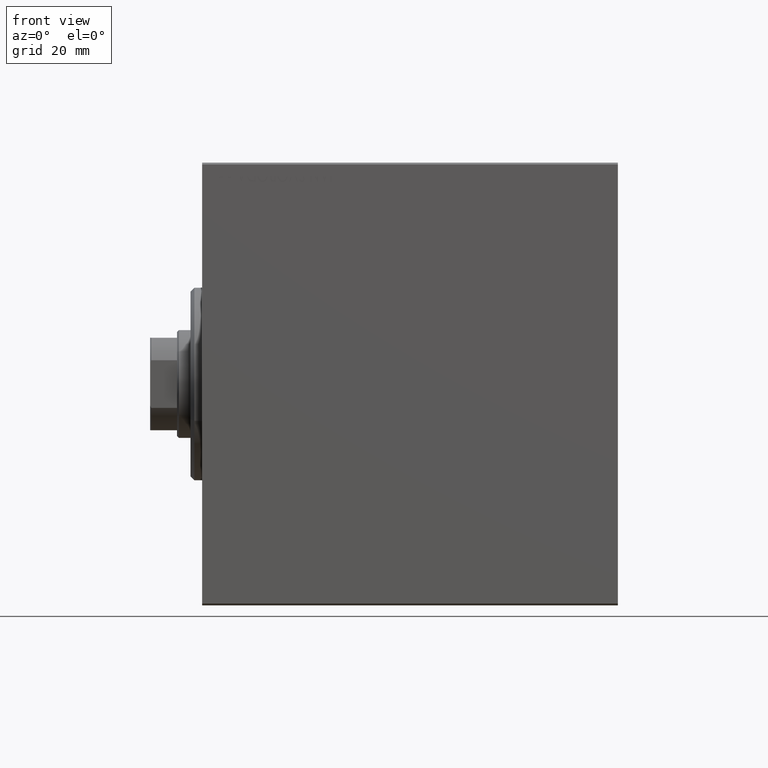
[diagram: clean part render]
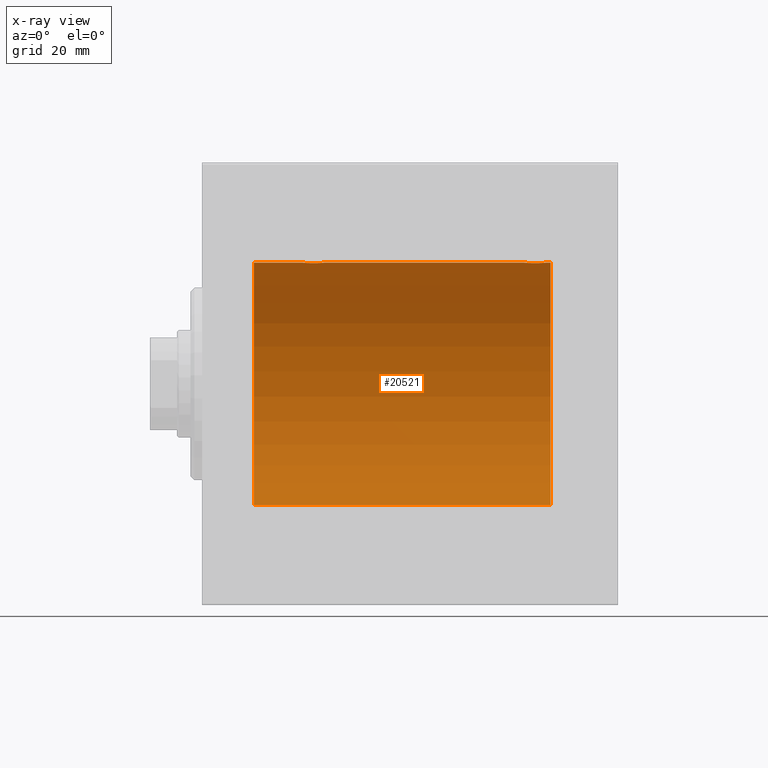
[diagram: x-ray — body ghosted, one internal face saturated and labeled with its STEP entity id]
A machine part, front view, then the same camera in x-ray: the body is ghosted and one INTERNAL B-rep face — a face not visible from any outside direction — is saturated and labeled: STEP entity #20521.
In plain terms, the highlighted cylindrical surface (partial cylindrical patch) has radius 31.5 mm, axis along (-1, -0, -0).
Its self-contained STEP definition (entity closure, byte-faithful):
#187 = CARTESIAN_POINT ( 'NONE',  ( 85.72154160523335520, 2.903876953428275343, 31.36588880666517909 ) ) ;
#618 = VECTOR ( 'NONE', #40549, 1000.000000000000000 ) ;
#1093 = CARTESIAN_POINT ( 'NONE',  ( 31.84649213527308120, 0.9675486622706125361, 31.48566161620712478 ) ) ;
#1532 = CARTESIAN_POINT ( 'NONE',  ( 29.39162658774828785, 2.980875975682584222, 31.35866508162785848 ) ) ;
#1569 = CARTESIAN_POINT ( 'NONE',  ( 90.50000000000000000, 0.000000000000000000, 31.50000000000000000 ) ) ;
#1763 = DIRECTION ( 'NONE',  ( -1.000000000000000000, 0.000000000000000000, 0.000000000000000000 ) ) ;
#3317 = CARTESIAN_POINT ( 'NONE',  ( 87.27897008593143369, 2.903824817694236504, 31.36589387714387200 ) ) ;
#3534 = CARTESIAN_POINT ( 'NONE',  ( 86.30529250725176382, 3.000070712257539629, 31.35681067529873189 ) ) ;
#3555 = ORIENTED_EDGE ( 'NONE', *, *, #13470, .T. ) ;
#3979 = CARTESIAN_POINT ( 'NONE',  ( 88.00363134844577928, 2.603460270751700278, 31.39242096616744959 ) ) ;
#4207 = CARTESIAN_POINT ( 'NONE',  ( 31.25924903376736097, 1.983444873066708247, 31.43779820687992554 ) ) ;
#4427 = CARTESIAN_POINT ( 'NONE',  ( 26.61488042651788177, 1.830131931565276426, 31.44721086712685931 ) ) ;
#5407 = CARTESIAN_POINT ( 'NONE',  ( 13.49999999999999822, 3.857637417314162689E-15, -31.50000000000000000 ) ) ;
#5466 = ORIENTED_EDGE ( 'NONE', *, *, #7889, .T. ) ;
#5562 = DIRECTION ( 'NONE',  ( -1.000000000000000000, -0.000000000000000000, -0.000000000000000000 ) ) ;
#5784 = EDGE_CURVE ( 'NONE', #30088, #26821, #40113, .T. ) ;
#6136 = CARTESIAN_POINT ( 'NONE',  ( 13.49999999999999822, 0.000000000000000000, 31.50000000000000000 ) ) ;
#6471 = CARTESIAN_POINT ( 'NONE',  ( 89.50000000000000000, -2.415502498297804861E-16, 31.50000000000000000 ) ) ;
#6789 = VECTOR ( 'NONE', #33684, 1000.000000000000000 ) ;
#7107 = CARTESIAN_POINT ( 'NONE',  ( 89.50000000000000000, -2.415502498297804861E-16, 31.50000000000000000 ) ) ;
#7889 = EDGE_CURVE ( 'NONE', #10371, #34464, #24802, .T. ) ;
#7967 = ORIENTED_EDGE ( 'NONE', *, *, #12276, .T. ) ;
#7999 = CARTESIAN_POINT ( 'NONE',  ( 28.60640401948893086, 2.980533683278877355, 31.35869737338551388 ) ) ;
#8224 = CARTESIAN_POINT ( 'NONE',  ( 29.77897008593146211, 2.903824817694226290, 31.36589387714387200 ) ) ;
#8447 = CARTESIAN_POINT ( 'NONE',  ( 31.90423806629734926, 0.7769457993854306244, 31.49100119919085472 ) ) ;
#8890 = CARTESIAN_POINT ( 'NONE',  ( 13.49999999999999822, 0.000000000000000000, 0.000000000000000000 ) ) ;
#9164 = VECTOR ( 'NONE', #35668, 1000.000000000000000 ) ;
#9458 = ORIENTED_EDGE ( 'NONE', *, *, #42664, .T. ) ;
#10008 = CARTESIAN_POINT ( 'NONE',  ( 86.69688046033346041, 2.999928894260102563, 31.35682424344752306 ) ) ;
#10371 = VERTEX_POINT ( 'NONE', #34181 ) ;
#10446 = CARTESIAN_POINT ( 'NONE',  ( 88.88591626639478704, 1.829162098167821604, 31.44727042639136627 ) ) ;
#10667 = CARTESIAN_POINT ( 'NONE',  ( 83.59639262129910264, 0.7794402936641361412, 31.49094275383853514 ) ) ;
#11638 = CARTESIAN_POINT ( 'NONE',  ( 90.50000000000000000, 0.000000000000000000, 31.50000000000000000 ) ) ;
#11767 = VERTEX_POINT ( 'NONE', #6136 ) ;
#12276 = EDGE_CURVE ( 'NONE', #11767, #35058, #42314, .T. ) ;
#13194 = LINE ( 'NONE', #36816, #6789 ) ;
#13470 = EDGE_CURVE ( 'NONE', #30088, #38954, #17555, .T. ) ;
#13634 = CARTESIAN_POINT ( 'NONE',  ( 90.50000000000000000, 0.000000000000000000, 0.000000000000000000 ) ) ;
#13785 = CARTESIAN_POINT ( 'NONE',  ( 84.67061414532871311, 2.385694485610543314, 31.40971707706042437 ) ) ;
#13812 = ORIENTED_EDGE ( 'NONE', *, *, #5784, .F. ) ;
#14206 = CARTESIAN_POINT ( 'NONE',  ( 90.50000000000000000, 0.000000000000000000, 31.50000000000000000 ) ) ;
#14560 = CARTESIAN_POINT ( 'NONE',  ( 26.00000000000000355, -2.117263226567934635E-23, 31.50000000000000000 ) ) ;
#14688 = CARTESIAN_POINT ( 'NONE',  ( 26.00000000000000355, -2.117263226567934635E-23, 31.50000000000000000 ) ) ;
#14911 = CARTESIAN_POINT ( 'NONE',  ( 31.38591626639475862, 1.829162098167815387, 31.44727042639135917 ) ) ;
#15429 = CARTESIAN_POINT ( 'NONE',  ( 32.00000000000000000, -3.906065418435112189E-16, 31.50000000000000000 ) ) ;
#16693 = CARTESIAN_POINT ( 'NONE',  ( 83.51962964533699108, 0.3947854228308227409, 31.49811339059598581 ) ) ;
#17131 = CARTESIAN_POINT ( 'NONE',  ( 86.10640401948890599, 2.980533683278887569, 31.35869737338551388 ) ) ;
#17555 = LINE ( 'NONE', #14206, #38074 ) ;
#17580 = CARTESIAN_POINT ( 'NONE',  ( 85.53447219557938297, 2.847177118681589292, 31.37115363072576102 ) ) ;
#17650 = DIRECTION ( 'NONE',  ( 0.000000000000000000, 0.000000000000000000, 1.000000000000000000 ) ) ;
#17810 = CARTESIAN_POINT ( 'NONE',  ( 29.19688046033348883, 2.999928894260092349, 31.35682424344752306 ) ) ;
#18700 = CARTESIAN_POINT ( 'NONE',  ( 26.00000000000001066, 0.1958503357044829030, 31.50000000000000711 ) ) ;
#20040 = CARTESIAN_POINT ( 'NONE',  ( 83.65313998394373129, 0.9664718879465890033, 31.48569500832682522 ) ) ;
#20190 = AXIS2_PLACEMENT_3D ( 'NONE', #13634, #24121, #17650 ) ;
#20486 = CARTESIAN_POINT ( 'NONE',  ( 88.33158836027361360, 2.384155341399023520, 31.40983767558390483 ) ) ;
#20496 = LINE ( 'NONE', #37867, #618 ) ;
#20521 = ADVANCED_FACE ( 'NONE', ( #42343 ), #38773, .F. ) ;
#20701 = CARTESIAN_POINT ( 'NONE',  ( 83.49999999999997158, 0.1958503357044810711, 31.50000000000000000 ) ) ;
#20921 = CARTESIAN_POINT ( 'NONE',  ( 89.48052481897511257, 0.3933386891556650000, 31.49812829325317054 ) ) ;
#21158 = CARTESIAN_POINT ( 'NONE',  ( 29.96816165840708379, 2.846197268611679654, 31.37124163027859325 ) ) ;
#21376 = CARTESIAN_POINT ( 'NONE',  ( 30.83158836027363492, 2.384155341399014638, 31.40983767558391193 ) ) ;
#21820 = CARTESIAN_POINT ( 'NONE',  ( 26.30368186223717331, 1.329867798385257815, 31.47244047903475206 ) ) ;
#22044 = CARTESIAN_POINT ( 'NONE',  ( 31.69583971800497935, 1.330832861354130925, 31.47239936387596160 ) ) ;
#22724 = DIRECTION ( 'NONE',  ( 0.000000000000000000, 0.000000000000000000, 1.000000000000000000 ) ) ;
#23391 = CARTESIAN_POINT ( 'NONE',  ( 89.34649213527309541, 0.9675486622706157558, 31.48566161620712478 ) ) ;
#23602 = CARTESIAN_POINT ( 'NONE',  ( 89.19583971800496158, 1.330832861354135144, 31.47239936387595449 ) ) ;
#23636 = EDGE_CURVE ( 'NONE', #34464, #11767, #25185, .T. ) ;
#23826 = CARTESIAN_POINT ( 'NONE',  ( 89.10366586440801484, 1.503114925126262547, 31.46454030768325438 ) ) ;
#24045 = CARTESIAN_POINT ( 'NONE',  ( 83.89764130386932095, 1.505293155307508624, 31.46443304312125733 ) ) ;
#24121 = DIRECTION ( 'NONE',  ( -1.000000000000000000, 0.000000000000000000, 0.000000000000000000 ) ) ;
#24491 = CARTESIAN_POINT ( 'NONE',  ( 27.17061414532871311, 2.385694485610531324, 31.40971707706042437 ) ) ;
#24640 = ORIENTED_EDGE ( 'NONE', *, *, #28416, .F. ) ;
#24802 = B_SPLINE_CURVE_WITH_KNOTS ( 'NONE', 3,
 ( #15429, #32588, #25669, #8447, #1093, #22044, #31842, #14911, #4207, #38754, #21376, #32066, #38533, #21158, #8224, #1532, #17810, #31393, #7999, #35415, #25371, #35634, #42323, #24491, #34743, #34967, #4427, #28719, #21820, #28501, #41426, #41884, #18700, #14688 ),
 .UNSPECIFIED., .F., .F.,
 ( 4, 2, 2, 2, 2, 2, 2, 2, 2, 2, 2, 2, 2, 2, 2, 2, 4 ),
 ( 1.524755128789623575E-18, 0.0005865426616959163852, 0.001173085323391831252, 0.001759627985087746120, 0.002346170646783661204, 0.002932713308479576071, 0.003519255970175490938, 0.004105798631871405806, 0.004692341293567320673, 0.005278883955263235540, 0.005865426616959150408, 0.006451969278655065275, 0.007038511940350980142, 0.007625054602046895010, 0.008211597263742809877, 0.008798139925438723877, 0.009384682587134639611 ),
 .UNSPECIFIED. ) ;
#25083 = ORIENTED_EDGE ( 'NONE', *, *, #25096, .T. ) ;
#25096 = EDGE_CURVE ( 'NONE', #38954, #36832, #38946, .T. ) ;
#25185 = LINE ( 'NONE', #1569, #9164 ) ;
#25371 = CARTESIAN_POINT ( 'NONE',  ( 28.03447219557935099, 2.847177118681576413, 31.37115363072576102 ) ) ;
#25669 = CARTESIAN_POINT ( 'NONE',  ( 31.98052481897509836, 0.3933386891556653886, 31.49812829325316343 ) ) ;
#26720 = CARTESIAN_POINT ( 'NONE',  ( 85.17111044284132504, 2.696796994793650981, 31.38443855856935016 ) ) ;
#26821 = VERTEX_POINT ( 'NONE', #36005 ) ;
#27376 = CARTESIAN_POINT ( 'NONE',  ( 84.51911300874994026, 2.261707786034461432, 31.41901301017587755 ) ) ;
#27454 = ORIENTED_EDGE ( 'NONE', *, *, #23636, .T. ) ;
#27601 = CARTESIAN_POINT ( 'NONE',  ( 84.11488042651789954, 1.830131931565288195, 31.44721086712686642 ) ) ;
#27790 = DIRECTION ( 'NONE',  ( -1.000000000000000000, -0.000000000000000000, -0.000000000000000000 ) ) ;
#28416 = EDGE_CURVE ( 'NONE', #26821, #35058, #20496, .T. ) ;
#28501 = CARTESIAN_POINT ( 'NONE',  ( 26.15313998394373840, 0.9664718879465885593, 31.48569500832682522 ) ) ;
#28719 = CARTESIAN_POINT ( 'NONE',  ( 26.39764130386935648, 1.505293155307497965, 31.46443304312125022 ) ) ;
#30088 = VERTEX_POINT ( 'NONE', #11638 ) ;
#30286 = CARTESIAN_POINT ( 'NONE',  ( 87.82915601164999941, 2.696575640577657307, 31.38445666459464789 ) ) ;
#30715 = CARTESIAN_POINT ( 'NONE',  ( 87.46816165840706958, 2.846197268611692088, 31.37124163027859325 ) ) ;
#31168 = CARTESIAN_POINT ( 'NONE',  ( 89.40423806629732439, 0.7769457993854311795, 31.49100119919085472 ) ) ;
#31393 = CARTESIAN_POINT ( 'NONE',  ( 28.80529250725175316, 3.000070712257528971, 31.35681067529873189 ) ) ;
#31842 = CARTESIAN_POINT ( 'NONE',  ( 31.60366586440800063, 1.503114925126257218, 31.46454030768326149 ) ) ;
#32066 = CARTESIAN_POINT ( 'NONE',  ( 30.50363134844576507, 2.603460270751690508, 31.39242096616744249 ) ) ;
#32588 = CARTESIAN_POINT ( 'NONE',  ( 31.99999999999998579, 0.1983379036618942437, 31.50000000000000000 ) ) ;
#33684 = DIRECTION ( 'NONE',  ( -1.000000000000000000, -0.000000000000000000, -0.000000000000000000 ) ) ;
#34074 = CARTESIAN_POINT ( 'NONE',  ( 89.50000000000001421, 0.1983379036618948266, 31.49999999999999289 ) ) ;
#34181 = CARTESIAN_POINT ( 'NONE',  ( 32.00000000000000000, -3.906065418435112189E-16, 31.50000000000000000 ) ) ;
#34207 = EDGE_LOOP ( 'NONE', ( #24640, #13812, #3555, #25083, #9458, #5466, #27454, #7967 ) ) ;
#34288 = CARTESIAN_POINT ( 'NONE',  ( 83.49999999999998579, -2.116947682205846230E-23, 31.50000000000000000 ) ) ;
#34464 = VERTEX_POINT ( 'NONE', #14560 ) ;
#34515 = CARTESIAN_POINT ( 'NONE',  ( 88.48257411773192871, 2.260013192167880547, 31.41912713670171087 ) ) ;
#34743 = CARTESIAN_POINT ( 'NONE',  ( 27.01911300874993316, 2.261707786034451662, 31.41901301017587755 ) ) ;
#34967 = CARTESIAN_POINT ( 'NONE',  ( 26.73894082546058826, 1.981627308739907001, 31.43792063499534351 ) ) ;
#35058 = VERTEX_POINT ( 'NONE', #5407 ) ;
#35415 = CARTESIAN_POINT ( 'NONE',  ( 28.22154160523339783, 2.903876953428266461, 31.36588880666517909 ) ) ;
#35634 = CARTESIAN_POINT ( 'NONE',  ( 27.67111044284136057, 2.696796994793635438, 31.38443855856935016 ) ) ;
#35668 = DIRECTION ( 'NONE',  ( -1.000000000000000000, -0.000000000000000000, -0.000000000000000000 ) ) ;
#36005 = CARTESIAN_POINT ( 'NONE',  ( 90.50000000000000000, 3.857637417314162689E-15, -31.50000000000000000 ) ) ;
#36088 = DIRECTION ( 'NONE',  ( 0.000000000000000000, 0.000000000000000000, 1.000000000000000000 ) ) ;
#36816 = CARTESIAN_POINT ( 'NONE',  ( 90.50000000000000000, 0.000000000000000000, 31.50000000000000000 ) ) ;
#36832 = VERTEX_POINT ( 'NONE', #42248 ) ;
#36983 = CARTESIAN_POINT ( 'NONE',  ( 86.89162658774827719, 2.980875975682594881, 31.35866508162786559 ) ) ;
#37420 = CARTESIAN_POINT ( 'NONE',  ( 88.75924903376738939, 1.983444873066714020, 31.43779820687993976 ) ) ;
#37644 = CARTESIAN_POINT ( 'NONE',  ( 83.80368186223715554, 1.329867798385260702, 31.47244047903475916 ) ) ;
#37867 = CARTESIAN_POINT ( 'NONE',  ( 90.50000000000000000, 3.857637417314162689E-15, -31.50000000000000000 ) ) ;
#38074 = VECTOR ( 'NONE', #27790, 1000.000000000000000 ) ;
#38533 = CARTESIAN_POINT ( 'NONE',  ( 30.32915601165003139, 2.696575640577646205, 31.38445666459465500 ) ) ;
#38754 = CARTESIAN_POINT ( 'NONE',  ( 30.98257411773193937, 2.260013192167872109, 31.41912713670170376 ) ) ;
#38773 = CYLINDRICAL_SURFACE ( 'NONE', #42539, 31.50000000000000000 ) ;
#38946 = B_SPLINE_CURVE_WITH_KNOTS ( 'NONE', 3,
 ( #7107, #34074, #20921, #31168, #23391, #23602, #23826, #10446, #37420, #34515, #20486, #3979, #30286, #30715, #3317, #36983, #10008, #3534, #17131, #187, #17580, #26720, #40317, #13785, #27376, #40979, #27601, #24045, #37644, #20040, #10667, #16693, #20701, #34288 ),
 .UNSPECIFIED., .F., .F.,
 ( 4, 2, 2, 2, 2, 2, 2, 2, 2, 2, 2, 2, 2, 2, 2, 2, 4 ),
 ( 2.347214371482653179E-19, 0.0005865426616959166020, 0.001173085323391832770, 0.001759627985087748722, 0.002346170646783665107, 0.002932713308479581275, 0.003519255970175497444, 0.004105798631871413612, 0.004692341293567330214, 0.005278883955263246816, 0.005865426616959162551, 0.006451969278655079153, 0.007038511940350995755, 0.007625054602046912357, 0.008211597263742828959, 0.008798139925438744693, 0.009384682587134660428 ),
 .UNSPECIFIED. ) ;
#38954 = VERTEX_POINT ( 'NONE', #6471 ) ;
#39426 = CARTESIAN_POINT ( 'NONE',  ( 90.50000000000000000, 0.000000000000000000, 0.000000000000000000 ) ) ;
#40113 = CIRCLE ( 'NONE', #20190, 31.50000000000000000 ) ;
#40317 = CARTESIAN_POINT ( 'NONE',  ( 84.99557653296076865, 2.602863964129819241, 31.39246667950590464 ) ) ;
#40549 = DIRECTION ( 'NONE',  ( -1.000000000000000000, -0.000000000000000000, -0.000000000000000000 ) ) ;
#40861 = AXIS2_PLACEMENT_3D ( 'NONE', #8890, #1763, #36088 ) ;
#40979 = CARTESIAN_POINT ( 'NONE',  ( 84.23894082546060247, 1.981627308739915216, 31.43792063499535061 ) ) ;
#41426 = CARTESIAN_POINT ( 'NONE',  ( 26.09639262129909554, 0.7794402936641312563, 31.49094275383852093 ) ) ;
#41884 = CARTESIAN_POINT ( 'NONE',  ( 26.01962964533704081, 0.3947854228308197988, 31.49811339059600002 ) ) ;
#42248 = CARTESIAN_POINT ( 'NONE',  ( 83.49999999999998579, -2.116947682205846230E-23, 31.50000000000000000 ) ) ;
#42314 = CIRCLE ( 'NONE', #40861, 31.50000000000000000 ) ;
#42323 = CARTESIAN_POINT ( 'NONE',  ( 27.49557653296076154, 2.602863964129807250, 31.39246667950590464 ) ) ;
#42343 = FACE_OUTER_BOUND ( 'NONE', #34207, .T. ) ;
#42539 = AXIS2_PLACEMENT_3D ( 'NONE', #39426, #5562, #22724 ) ;
#42664 = EDGE_CURVE ( 'NONE', #36832, #10371, #13194, .T. ) ;